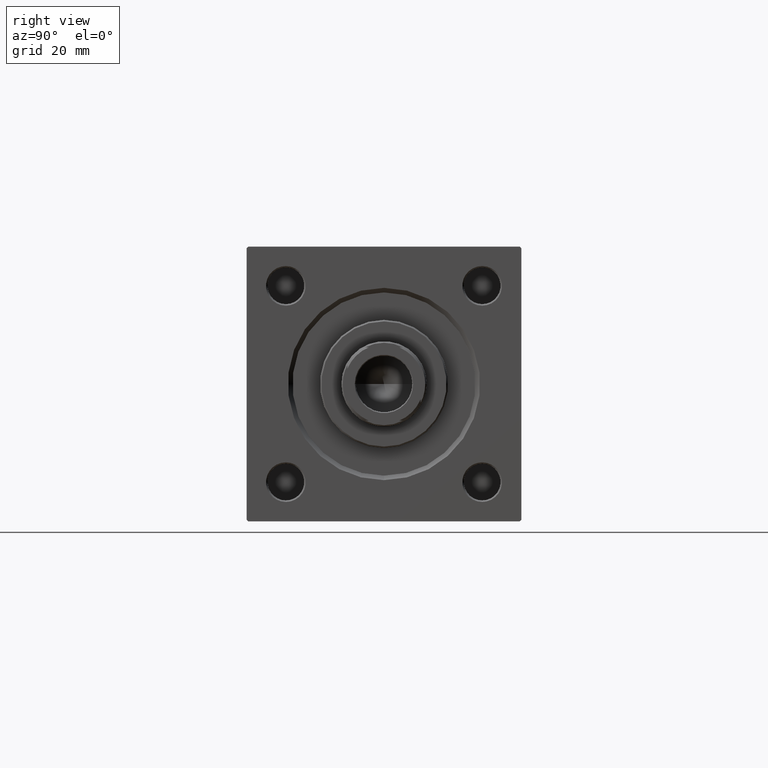
[diagram: clean part render]
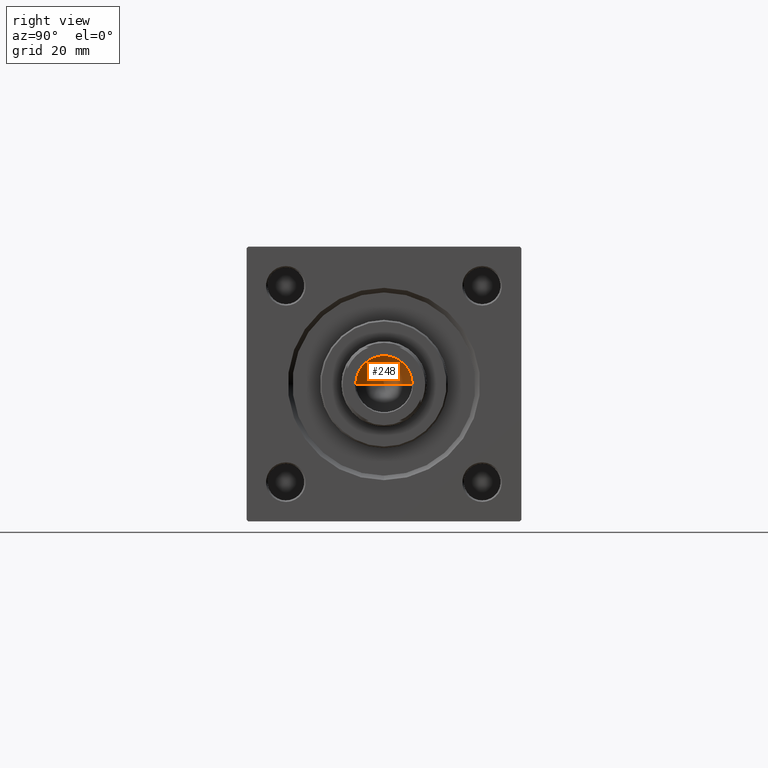
[diagram: same view with one face highlighted and labeled with its STEP entity id]
A machine part, right view. The second image highlights one B-rep face of the part: STEP entity #248.
In plain terms, the highlighted conical surface has half-angle 59 deg.
Its self-contained STEP definition (entity closure, byte-faithful):
#122 = CARTESIAN_POINT ( 'NONE',  ( -9.249999999999992895, 1.132798289211300712E-15, 114.9999999999999858 ) ) ;
#248 = ADVANCED_FACE ( 'NONE', ( #23065 ), #14694, .F. ) ;
#1226 = CARTESIAN_POINT ( 'NONE',  ( 9.249999999999992895, 0.000000000000000000, 114.9999999999999858 ) ) ;
#3017 = DIRECTION ( 'NONE',  ( -0.000000000000000000, -0.000000000000000000, 1.000000000000000000 ) ) ;
#3473 = CIRCLE ( 'NONE', #9979, 9.249999999999992895 ) ;
#5130 = DIRECTION ( 'NONE',  ( -0.000000000000000000, -0.000000000000000000, 1.000000000000000000 ) ) ;
#6320 = CARTESIAN_POINT ( 'NONE',  ( -9.769621978240258809E-15, 0.000000000000000000, 109.4420392739950501 ) ) ;
#7893 = VERTEX_POINT ( 'NONE', #6320 ) ;
#9979 = AXIS2_PLACEMENT_3D ( 'NONE', #12267, #5130, #35621 ) ;
#11051 = LINE ( 'NONE', #122, #39192 ) ;
#11650 = VERTEX_POINT ( 'NONE', #17163 ) ;
#12267 = CARTESIAN_POINT ( 'NONE',  ( 0.000000000000000000, 0.000000000000000000, 114.9999999999999858 ) ) ;
#13451 = CARTESIAN_POINT ( 'NONE',  ( -9.249999999999992895, 1.132798289211300712E-15, 114.9999999999999858 ) ) ;
#14694 = CONICAL_SURFACE ( 'NONE', #22016, 9.249999999999992895, 1.029744258676653423 ) ;
#15984 = LINE ( 'NONE', #1226, #26489 ) ;
#17163 = CARTESIAN_POINT ( 'NONE',  ( 9.249999999999992895, 0.000000000000000000, 114.9999999999999858 ) ) ;
#22016 = AXIS2_PLACEMENT_3D ( 'NONE', #37805, #3017, #38566 ) ;
#23065 = FACE_OUTER_BOUND ( 'NONE', #50097, .T. ) ;
#23415 = EDGE_CURVE ( 'NONE', #23620, #11650, #3473, .T. ) ;
#23620 = VERTEX_POINT ( 'NONE', #13451 ) ;
#26147 = EDGE_CURVE ( 'NONE', #7893, #23620, #11051, .T. ) ;
#26489 = VECTOR ( 'NONE', #47707, 1000.000000000000000 ) ;
#34456 = ORIENTED_EDGE ( 'NONE', *, *, #23415, .T. ) ;
#35456 = EDGE_CURVE ( 'NONE', #7893, #11650, #15984, .T. ) ;
#35621 = DIRECTION ( 'NONE',  ( 1.000000000000000000, 0.000000000000000000, 0.000000000000000000 ) ) ;
#37055 = ORIENTED_EDGE ( 'NONE', *, *, #35456, .F. ) ;
#37805 = CARTESIAN_POINT ( 'NONE',  ( 0.000000000000000000, 0.000000000000000000, 114.9999999999999858 ) ) ;
#38566 = DIRECTION ( 'NONE',  ( 1.000000000000000000, 0.000000000000000000, 0.000000000000000000 ) ) ;
#39192 = VECTOR ( 'NONE', #42539, 1000.000000000000000 ) ;
#42539 = DIRECTION ( 'NONE',  ( -0.8571673007021117785, 1.049727191138617956E-16, 0.5150380749100550437 ) ) ;
#46044 = ORIENTED_EDGE ( 'NONE', *, *, #26147, .T. ) ;
#47707 = DIRECTION ( 'NONE',  ( 0.8571673007021117785, 0.000000000000000000, 0.5150380749100550437 ) ) ;
#50097 = EDGE_LOOP ( 'NONE', ( #37055, #46044, #34456 ) ) ;